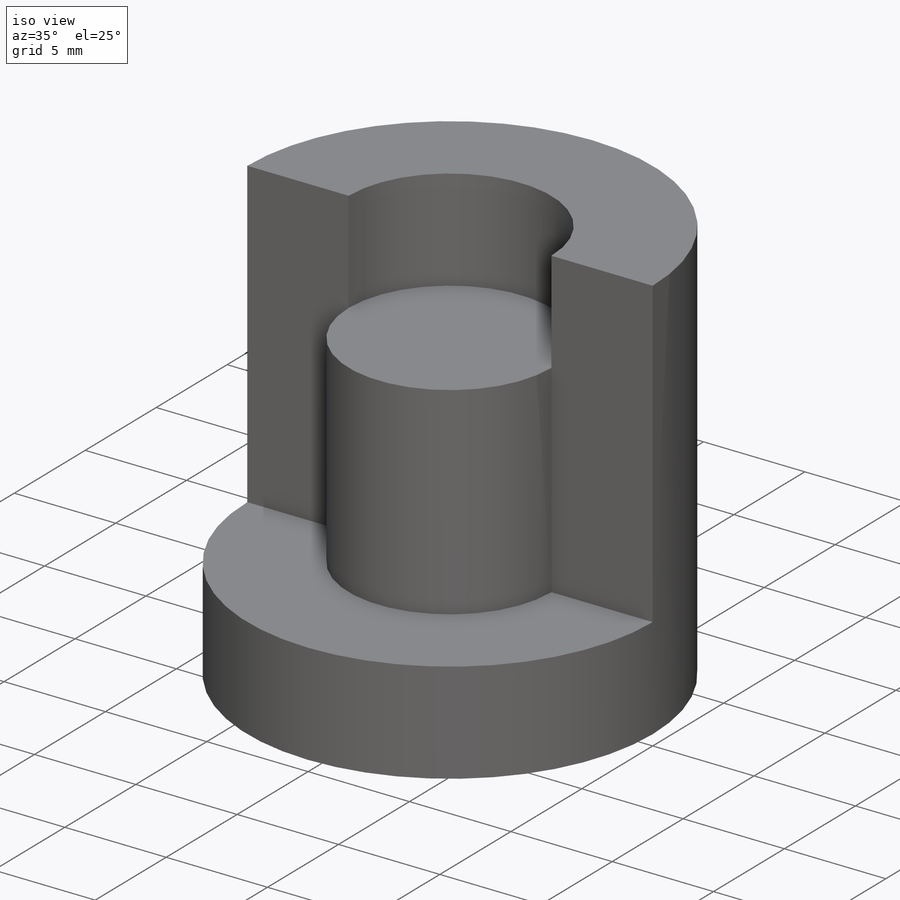
[diagram: iso view]
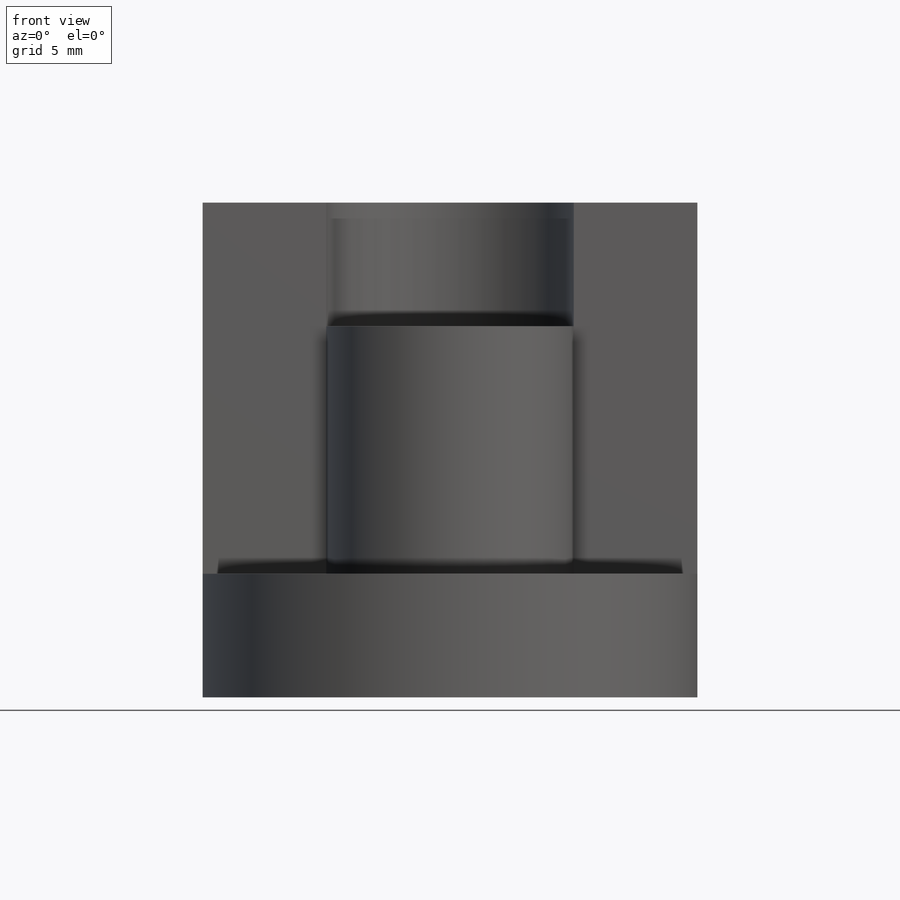
[diagram: front view]
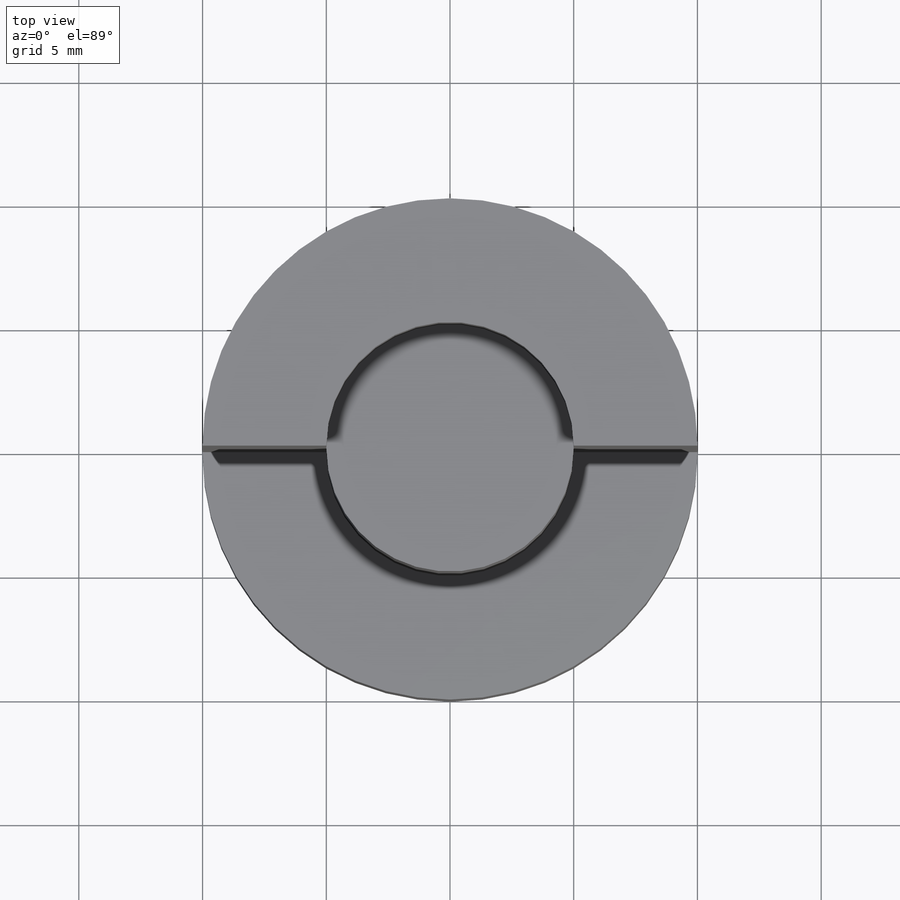
[diagram: top view]
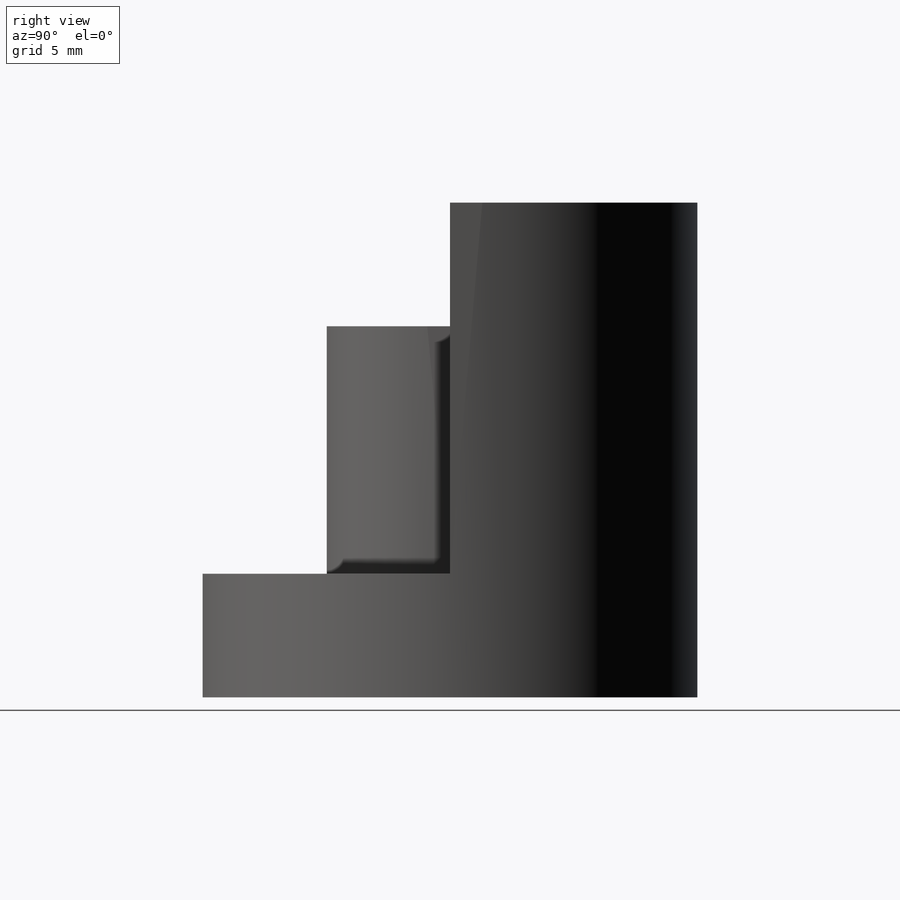
[diagram: right view]
SOLIDWORKS PART (.sldprt)
format: sldprt  version: not decoded by parser v0  size: 142,848 bytes
history: native  units: mm
features: sketch x3, cut_extrude x2, material x1, revolve x1 (+13 scaffold rows collapsed)
feature tree (20):
  scaffold x13  (default folders/planes/origin — collapsed)
  material  "Material <not specified>"
  sketch  "Sketch1"  dims[D1=20.0mm D2=10.0mm]
  revolve  "Revolve1"  Angle=360deg
  sketch  "Sketch2"  dims[D1=10.0mm]
  cut_extrude  "Cut-Extrude5"  Depth=5mm
  sketch  "Sketch5"  dims[D3=5.0mm D4=10.0mm D1=5.0mm D2=5.0mm]
  cut_extrude  "Cut-Extrude6"  Depth=15mm
decode coverage: 6 of 6 modeling features carry decoded parameters
note: suppression state not decoded; provenance and decode notes live in map.json
